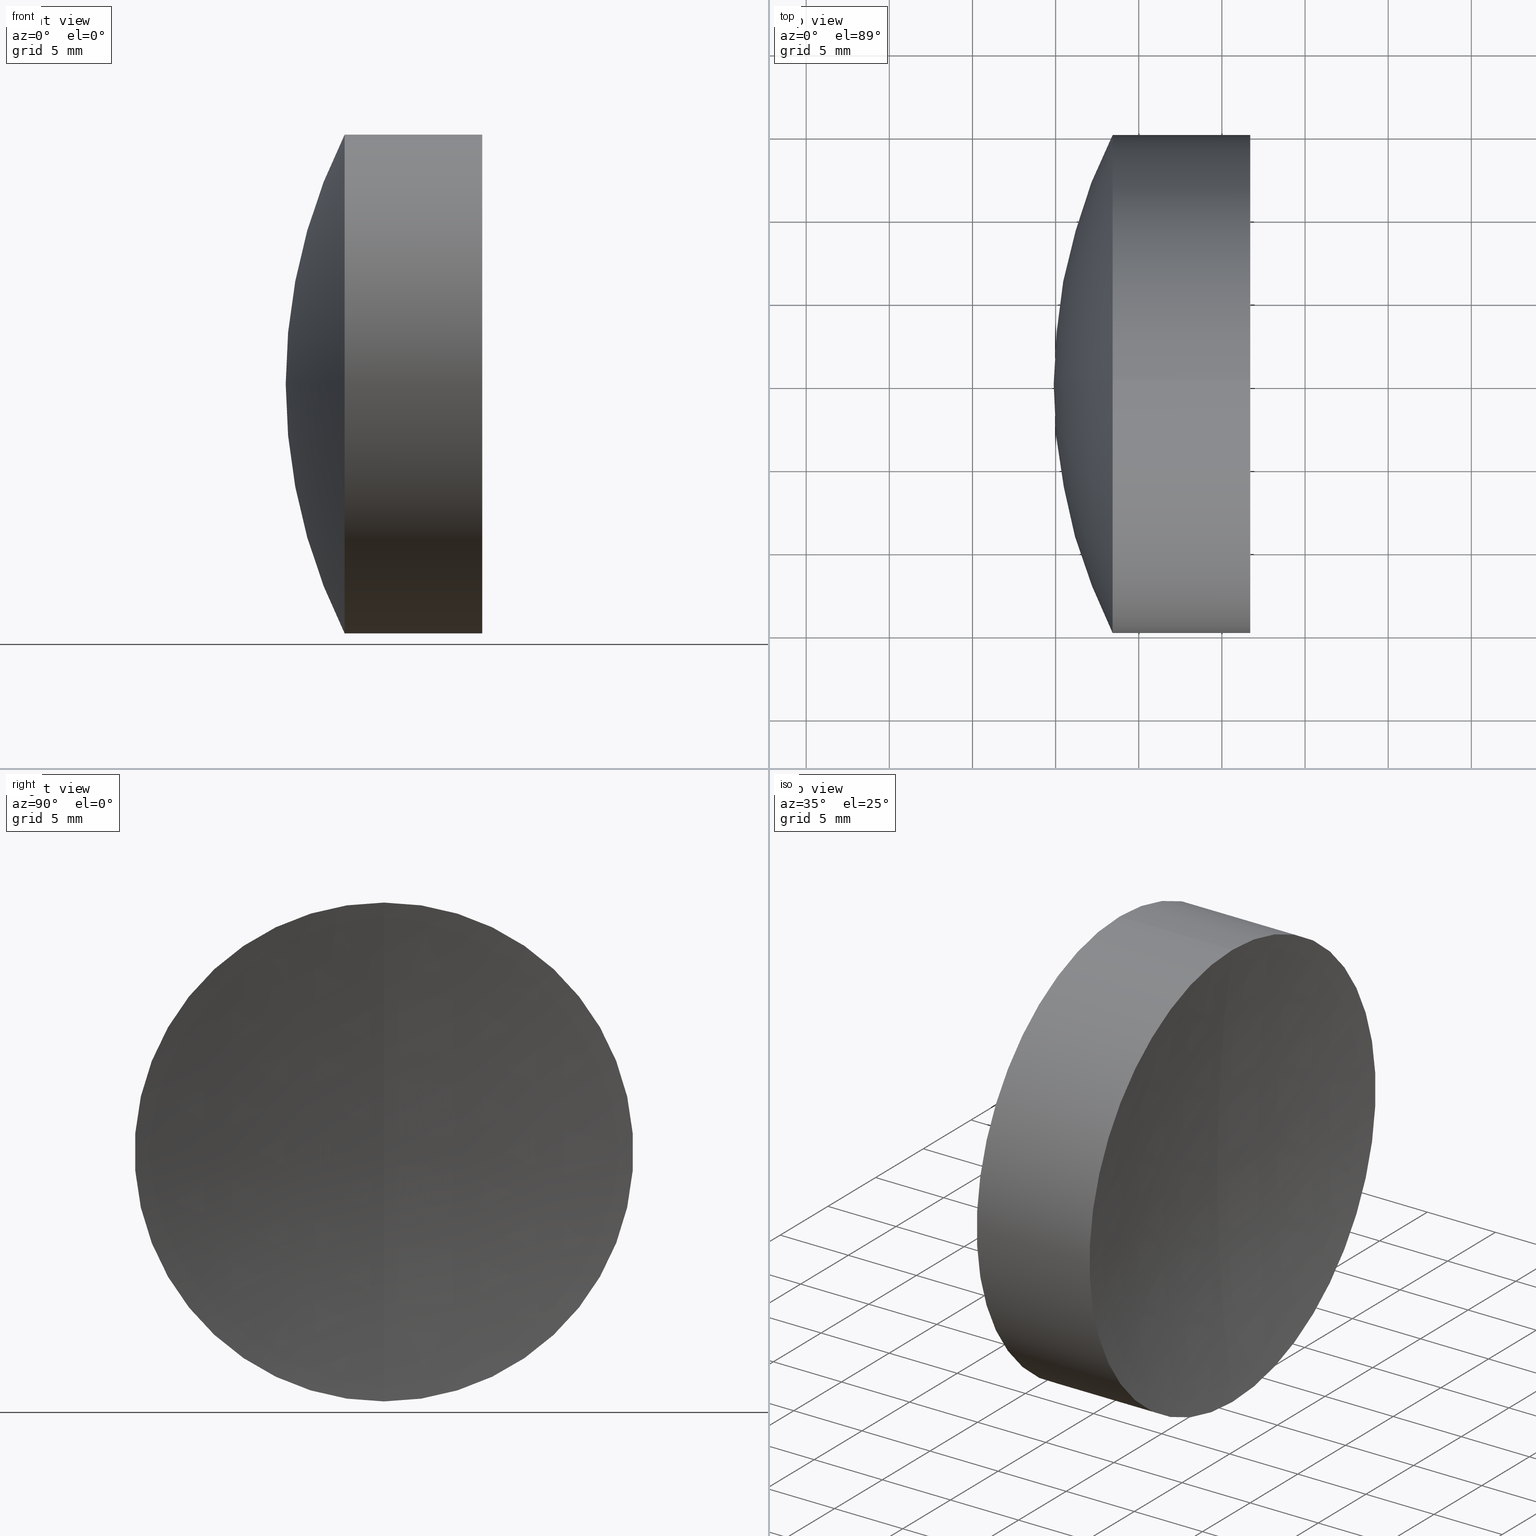
[diagram: canonical four-view strip — front | top / right | iso, engineering-drawing reading convention]
A machine part, canonical four-view strip (front | top / right | iso — engineering-drawing reading convention). The complete STEP part file that produces these views, byte-faithful:
ISO-10303-21;
HEADER;
FILE_DESCRIPTION (( 'STEP AP214' ),
    '1' );
FILE_NAME ('145175.STEP',
    '2019-06-12T03:09:09',
    ( 'user' ),
    ( '΢���й�' ),
    'SwSTEP 2.0',
    'SolidWorks 2016',
    '' );
FILE_SCHEMA (( 'AUTOMOTIVE_DESIGN' ));
ENDSEC;

DATA;
#1 = AXIS2_PLACEMENT_3D ( 'NONE', #339, #184, #150 ) ;
#2 = FACE_OUTER_BOUND ( 'NONE', #238, .T. ) ;
#3 = ORIENTED_EDGE ( 'NONE', *, *, #291, .F. ) ;
#4 = ORIENTED_EDGE ( 'NONE', *, *, #215, .T. ) ;
#5 =( GEOMETRIC_REPRESENTATION_CONTEXT ( 3 ) GLOBAL_UNCERTAINTY_ASSIGNED_CONTEXT ( ( #41 ) ) GLOBAL_UNIT_ASSIGNED_CONTEXT ( ( #45, #183, #181 ) ) REPRESENTATION_CONTEXT ( 'NONE', 'WORKASPACE' ) );
#6 = EDGE_CURVE ( 'NONE', #109, #336, #209, .T. ) ;
#7 = SURFACE_STYLE_USAGE ( .BOTH. , #259 ) ;
#8 = ORIENTED_EDGE ( 'NONE', *, *, #40, .T. ) ;
#9 =( NAMED_UNIT ( * ) SI_UNIT ( $, .STERADIAN. ) SOLID_ANGLE_UNIT ( ) );
#10 = CLOSED_SHELL ( 'NONE', ( #286, #230, #125, #174, #284, #114 ) ) ;
#11 = AXIS2_PLACEMENT_3D ( 'NONE', #289, #120, #309 ) ;
#12 =( NAMED_UNIT ( * ) PLANE_ANGLE_UNIT ( ) SI_UNIT ( $, .RADIAN. ) );
#13 = EDGE_LOOP ( 'NONE', ( #78, #4, #33 ) ) ;
#14 = DIRECTION ( 'NONE',  ( -1.000000000000000000, -0.0000000000000000000, -0.0000000000000000000 ) ) ;
#15 = AXIS2_PLACEMENT_3D ( 'NONE', #70, #331, #325 ) ;
#16 = EDGE_LOOP ( 'NONE', ( #152, #48, #252, #224 ) ) ;
#17 = DIRECTION ( 'NONE',  ( 0.0000000000000000000, 1.000000000000000000, 0.0000000000000000000 ) ) ;
#18 = COLOUR_RGB ( '',1.000000000000000000, 1.000000000000000000, 1.000000000000000000 ) ;
#19 = CARTESIAN_POINT ( 'NONE',  ( 64.21488383904902300, 0.0000000000000000000, -1.301132161007754700E-015 ) ) ;
#20 = AXIS2_PLACEMENT_3D ( 'NONE', #115, #132, #148 ) ;
#21 = CARTESIAN_POINT ( 'NONE',  ( 106.7084432076796400, 0.0000000000000000000, 0.0000000000000000000 ) ) ;
#22 = AXIS2_PLACEMENT_3D ( 'NONE', #168, #313, #141 ) ;
#23 = PRODUCT ( '145175', '145175', '', ( #201 ) ) ;
#24 = CARTESIAN_POINT ( 'NONE',  ( 103.3848838390490400, 0.0000000000000000000, 1.097338595122336800E-015 ) ) ;
#25 = EDGE_CURVE ( 'NONE', #173, #267, #271, .T. ) ;
#26 = CARTESIAN_POINT ( 'NONE',  ( 98.43075223754873100, 1.836970198721029600E-015, -15.00000000000000500 ) ) ;
#27 = CARTESIAN_POINT ( 'NONE',  ( 64.21488383904902300, 0.0000000000000000000, -1.301132161007754700E-015 ) ) ;
#28 = DIRECTION ( 'NONE',  ( 0.0000000000000000000, 0.0000000000000000000, -1.000000000000000000 ) ) ;
#29 = AXIS2_PLACEMENT_3D ( 'NONE', #211, #301, #139 ) ;
#30 = DIRECTION ( 'NONE',  ( 0.0000000000000000000, 1.000000000000000000, 0.0000000000000000000 ) ) ;
#31 = APPLICATION_PROTOCOL_DEFINITION ( 'draft international standard', 'automotive_design', 1998, #257 ) ;
#32 = CARTESIAN_POINT ( 'NONE',  ( -0.8160621761658039000, 0.0000000000000000000, 0.0000000000000000000 ) ) ;
#33 = ORIENTED_EDGE ( 'NONE', *, *, #149, .T. ) ;
#34 = ORIENTED_EDGE ( 'NONE', *, *, #229, .F. ) ;
#35 = AXIS2_PLACEMENT_3D ( 'NONE', #91, #99, #76 ) ;
#36 = CIRCLE ( 'NONE', #133, 39.17000000000000900 ) ;
#37 = ORIENTED_EDGE ( 'NONE', *, *, #296, .T. ) ;
#38 = AXIS2_PLACEMENT_3D ( 'NONE', #334, #285, #268 ) ;
#39 = AXIS2_PLACEMENT_3D ( 'NONE', #323, #58, #214 ) ;
#40 = EDGE_CURVE ( 'NONE', #109, #129, #246, .T. ) ;
#41 = UNCERTAINTY_MEASURE_WITH_UNIT (LENGTH_MEASURE( 1.000000000000000100E-005 ), #45, 'distance_accuracy_value', 'NONE');
#42 = ORIENTED_EDGE ( 'NONE', *, *, #240, .F. ) ;
#43 = CYLINDRICAL_SURFACE ( 'NONE', #243, 14.99999999999999600 ) ;
#44 = SPHERICAL_SURFACE ( 'NONE', #1, 100.6900000000000000 ) ;
#45 =( LENGTH_UNIT ( ) NAMED_UNIT ( * ) SI_UNIT ( .MILLI., .METRE. ) );
#46 = STYLED_ITEM ( 'NONE', ( #294 ), #102 ) ;
#47 = DIRECTION ( 'NONE',  ( 0.0000000000000000000, -1.000000000000000000, 0.0000000000000000000 ) ) ;
#48 = ORIENTED_EDGE ( 'NONE', *, *, #340, .T. ) ;
#49 = FACE_OUTER_BOUND ( 'NONE', #234, .T. ) ;
#50 = AXIS2_PLACEMENT_3D ( 'NONE', #64, #290, #307 ) ;
#51 = ORIENTED_EDGE ( 'NONE', *, *, #149, .F. ) ;
#52 = SPHERICAL_SURFACE ( 'NONE', #15, 100.6900000000000000 ) ;
#53 = DIRECTION ( 'NONE',  ( 0.0000000000000000000, 0.0000000000000000000, 1.000000000000000000 ) ) ;
#54 = AXIS2_PLACEMENT_3D ( 'NONE', #175, #108, #256 ) ;
#55 = CARTESIAN_POINT ( 'NONE',  ( 103.3848838390490400, 0.0000000000000000000, 1.097338595122337000E-015 ) ) ;
#56 = EDGE_CURVE ( 'NONE', #250, #59, #269, .T. ) ;
#57 = FACE_OUTER_BOUND ( 'NONE', #95, .T. ) ;
#58 = DIRECTION ( 'NONE',  ( -0.0000000000000000000, 1.000000000000000000, 1.224646799147353200E-016 ) ) ;
#59 = VERTEX_POINT ( 'NONE', #26 ) ;
#60 = ORIENTED_EDGE ( 'NONE', *, *, #206, .T. ) ;
#61 = PRESENTATION_LAYER_ASSIGNMENT (  '', '', ( #46 ) ) ;
#62 = DIRECTION ( 'NONE',  ( 0.0000000000000000000, 1.000000000000000000, 0.0000000000000000000 ) ) ;
#63 = FILL_AREA_STYLE_COLOUR ( '', #18 ) ;
#64 = CARTESIAN_POINT ( 'NONE',  ( 98.43075223754873100, 0.0000000000000000000, 0.0000000000000000000 ) ) ;
#65 = CARTESIAN_POINT ( 'NONE',  ( 128.3848838390490500, 0.0000000000000000000, -2.684811241742861700E-015 ) ) ;
#66 = MECHANICAL_DESIGN_GEOMETRIC_PRESENTATION_REPRESENTATION (  '', ( #46 ), #320 ) ;
#67 = ORIENTED_EDGE ( 'NONE', *, *, #56, .T. ) ;
#68 = DIRECTION ( 'NONE',  ( -1.000000000000000000, -0.0000000000000000000, -0.0000000000000000000 ) ) ;
#69 = CIRCLE ( 'NONE', #79, 15.00000000000000900 ) ;
#70 = CARTESIAN_POINT ( 'NONE',  ( 206.2748838390490100, 0.0000000000000000000, 0.0000000000000000000 ) ) ;
#71 = CIRCLE ( 'NONE', #112, 15.00000000000000900 ) ;
#72 = FILL_AREA_STYLE_COLOUR ( '', #266 ) ;
#73 = VERTEX_POINT ( 'NONE', #338 ) ;
#74 = FACE_OUTER_BOUND ( 'NONE', #179, .T. ) ;
#75 = AXIS2_PLACEMENT_3D ( 'NONE', #116, #68, #330 ) ;
#76 = DIRECTION ( 'NONE',  ( 0.0000000000000000000, 0.0000000000000000000, 1.000000000000000000 ) ) ;
#77 = DIRECTION ( 'NONE',  ( -0.0000000000000000000, 1.000000000000000000, 1.224646799147353200E-016 ) ) ;
#78 = ORIENTED_EDGE ( 'NONE', *, *, #296, .F. ) ;
#79 = AXIS2_PLACEMENT_3D ( 'NONE', #128, #302, #278 ) ;
#80 =( NAMED_UNIT ( * ) PLANE_ANGLE_UNIT ( ) SI_UNIT ( $, .RADIAN. ) );
#81 = ORIENTED_EDGE ( 'NONE', *, *, #321, .F. ) ;
#82 = COLOUR_RGB ( '',1.000000000000000000, 1.000000000000000000, 1.000000000000000000 ) ;
#83 = PRODUCT_DEFINITION_SHAPE ( 'NONE', 'NONE',  #204 ) ;
#84 = CYLINDRICAL_SURFACE ( 'NONE', #35, 15.00000000000000900 ) ;
#85 = SURFACE_STYLE_USAGE ( .BOTH. , #223 ) ;
#86 = DIRECTION ( 'NONE',  ( 0.0000000000000000000, 0.0000000000000000000, 1.000000000000000000 ) ) ;
#87 = FACE_OUTER_BOUND ( 'NONE', #13, .T. ) ;
#88 = CARTESIAN_POINT ( 'NONE',  ( -0.5519199926577972300, 0.0000000000000000000, 15.00000000000000900 ) ) ;
#89 = ORIENTED_EDGE ( 'NONE', *, *, #6, .T. ) ;
#90 = ORIENTED_EDGE ( 'NONE', *, *, #40, .F. ) ;
#91 = CARTESIAN_POINT ( 'NONE',  ( -0.5519199926577972300, 0.0000000000000000000, 0.0000000000000000000 ) ) ;
#92 = ADVANCED_FACE ( 'NONE', ( #186 ), #346, .T. ) ;
#93 = CARTESIAN_POINT ( 'NONE',  ( -0.5519199926577972300, 0.0000000000000000000, 0.0000000000000000000 ) ) ;
#94 = AXIS2_PLACEMENT_3D ( 'NONE', #113, #62, #86 ) ;
#95 = EDGE_LOOP ( 'NONE', ( #329, #8, #60 ) ) ;
#96 = CARTESIAN_POINT ( 'NONE',  ( 100.3989811747571700, 0.0000000000000000000, 0.0000000000000000000 ) ) ;
#97 = DIRECTION ( 'NONE',  ( 0.0000000000000000000, -1.000000000000000000, 0.0000000000000000000 ) ) ;
#98 = AXIS2_PLACEMENT_3D ( 'NONE', #287, #30, #194 ) ;
#99 = DIRECTION ( 'NONE',  ( -1.000000000000000000, -0.0000000000000000000, -0.0000000000000000000 ) ) ;
#100 = ORIENTED_EDGE ( 'NONE', *, *, #229, .T. ) ;
#101 = CARTESIAN_POINT ( 'NONE',  ( 100.3989811747571500, 0.0000000000000000000, 0.0000000000000000000 ) ) ;
#102 = MANIFOLD_SOLID_BREP ( '��ת2', #10 ) ;
#103 = EDGE_LOOP ( 'NONE', ( #310, #337, #210, #227 ) ) ;
#104 = AXIS2_PLACEMENT_3D ( 'NONE', #19, #295, #155 ) ;
#105 = DIRECTION ( 'NONE',  ( -1.000000000000000000, -0.0000000000000000000, -0.0000000000000000000 ) ) ;
#106 = DIRECTION ( 'NONE',  ( -1.000000000000000000, -0.0000000000000000000, -0.0000000000000000000 ) ) ;
#107 = EDGE_CURVE ( 'NONE', #162, #59, #142, .T. ) ;
#108 = DIRECTION ( 'NONE',  ( 0.0000000000000000000, 1.000000000000000000, 0.0000000000000000000 ) ) ;
#109 = VERTEX_POINT ( 'NONE', #24 ) ;
#110 =( LENGTH_UNIT ( ) NAMED_UNIT ( * ) SI_UNIT ( .MILLI., .METRE. ) );
#111 = CIRCLE ( 'NONE', #20, 33.50000000000001400 ) ;
#112 = AXIS2_PLACEMENT_3D ( 'NONE', #21, #106, #53 ) ;
#113 = CARTESIAN_POINT ( 'NONE',  ( 64.21488383904902300, 0.0000000000000000000, -1.301132161007754700E-015 ) ) ;
#114 = ADVANCED_FACE ( 'NONE', ( #275 ), #84, .T. ) ;
#115 = CARTESIAN_POINT ( 'NONE',  ( 128.3848838390490500, 0.0000000000000000000, -2.684811241742861700E-015 ) ) ;
#116 = CARTESIAN_POINT ( 'NONE',  ( 98.43075223754873100, 0.0000000000000000000, 0.0000000000000000000 ) ) ;
#117 = CARTESIAN_POINT ( 'NONE',  ( 106.7084432076796400, -1.836970198721022100E-015, 14.99999999999994000 ) ) ;
#118 = AXIS2_PLACEMENT_3D ( 'NONE', #101, #253, #254 ) ;
#119 = APPLICATION_CONTEXT ( 'automotive_design' ) ;
#120 = DIRECTION ( 'NONE',  ( -1.000000000000000000, -0.0000000000000000000, -0.0000000000000000000 ) ) ;
#121 = ADVANCED_FACE ( 'NONE', ( #87 ), #270, .T. ) ;
#122 = DIRECTION ( 'NONE',  ( -1.000000000000000000, -0.0000000000000000000, -0.0000000000000000000 ) ) ;
#123 = VECTOR ( 'NONE', #138, 1000.000000000000000 ) ;
#124 = AXIS2_PLACEMENT_3D ( 'NONE', #93, #197, #217 ) ;
#125 = ADVANCED_FACE ( 'NONE', ( #57 ), #293, .F. ) ;
#126 = ORIENTED_EDGE ( 'NONE', *, *, #166, .F. ) ;
#127 = ORIENTED_EDGE ( 'NONE', *, *, #303, .F. ) ;
#128 = CARTESIAN_POINT ( 'NONE',  ( 100.3989811747571500, 0.0000000000000000000, 0.0000000000000000000 ) ) ;
#129 = VERTEX_POINT ( 'NONE', #153 ) ;
#130 = AXIS2_PLACEMENT_3D ( 'NONE', #185, #77, #171 ) ;
#131 = SURFACE_STYLE_FILL_AREA ( #343 ) ;
#132 = DIRECTION ( 'NONE',  ( -0.0000000000000000000, 1.000000000000000000, 1.224646799147353200E-016 ) ) ;
#133 = AXIS2_PLACEMENT_3D ( 'NONE', #220, #47, #274 ) ;
#134 = DIRECTION ( 'NONE',  ( 0.0000000000000000000, 0.0000000000000000000, 1.000000000000000000 ) ) ;
#135 = DIRECTION ( 'NONE',  ( 1.000000000000000000, 0.0000000000000000000, 0.0000000000000000000 ) ) ;
#136 = SPHERICAL_SURFACE ( 'NONE', #104, 39.17000000000000900 ) ;
#137 = DIRECTION ( 'NONE',  ( 0.0000000000000000000, 0.0000000000000000000, 1.000000000000000000 ) ) ;
#138 = DIRECTION ( 'NONE',  ( -1.000000000000000000, -0.0000000000000000000, -0.0000000000000000000 ) ) ;
#139 = DIRECTION ( 'NONE',  ( 0.0000000000000000000, 0.0000000000000000000, 1.000000000000000000 ) ) ;
#140 = AXIS2_PLACEMENT_3D ( 'NONE', #158, #322, #188 ) ;
#141 = DIRECTION ( 'NONE',  ( 0.0000000000000000000, 0.0000000000000000000, 1.000000000000000000 ) ) ;
#142 = CIRCLE ( 'NONE', #50, 14.99999999999999600 ) ;
#143 = FACE_OUTER_BOUND ( 'NONE', #151, .T. ) ;
#144 = ADVANCED_FACE ( 'NONE', ( #342 ), #203, .T. ) ;
#145 = VECTOR ( 'NONE', #105, 1000.000000000000000 ) ;
#146 = FILL_AREA_STYLE_COLOUR ( '', #82 ) ;
#147 = AXIS2_PLACEMENT_3D ( 'NONE', #216, #304, #137 ) ;
#148 = DIRECTION ( 'NONE',  ( 0.0000000000000000000, -1.224646799147353000E-016, 1.000000000000000000 ) ) ;
#149 = EDGE_CURVE ( 'NONE', #162, #73, #160, .T. ) ;
#150 = DIRECTION ( 'NONE',  ( 0.0000000000000000000, 0.0000000000000000000, -1.000000000000000000 ) ) ;
#151 = EDGE_LOOP ( 'NONE', ( #126, #219, #3 ) ) ;
#152 = ORIENTED_EDGE ( 'NONE', *, *, #249, .F. ) ;
#153 = CARTESIAN_POINT ( 'NONE',  ( 100.3989811747571500, 1.836970198721031200E-015, -15.00000000000001100 ) ) ;
#154 =( GEOMETRIC_REPRESENTATION_CONTEXT ( 3 ) GLOBAL_UNCERTAINTY_ASSIGNED_CONTEXT ( ( #205 ) ) GLOBAL_UNIT_ASSIGNED_CONTEXT ( ( #199, #242, #9 ) ) REPRESENTATION_CONTEXT ( 'NONE', 'WORKASPACE' ) );
#155 = DIRECTION ( 'NONE',  ( 0.0000000000000000000, 0.0000000000000000000, 1.000000000000000000 ) ) ;
#156 = ORIENTED_EDGE ( 'NONE', *, *, #25, .F. ) ;
#157 = ORIENTED_EDGE ( 'NONE', *, *, #166, .T. ) ;
#158 = CARTESIAN_POINT ( 'NONE',  ( 206.2748838390490100, 0.0000000000000000000, 0.0000000000000000000 ) ) ;
#159 = EDGE_CURVE ( 'NONE', #236, #336, #258, .T. ) ;
#160 = CIRCLE ( 'NONE', #298, 33.50000000000001400 ) ;
#161 = SURFACE_STYLE_FILL_AREA ( #332 ) ;
#162 = VERTEX_POINT ( 'NONE', #306 ) ;
#163 = STYLED_ITEM ( 'NONE', ( #207 ), #335 ) ;
#164 = FILL_AREA_STYLE ('',( #63 ) ) ;
#165 = CARTESIAN_POINT ( 'NONE',  ( -0.8160621761658039000, 1.836970198721029200E-015, -14.99999999999999600 ) ) ;
#166 = EDGE_CURVE ( 'NONE', #299, #250, #326, .T. ) ;
#167 = ADVANCED_FACE ( 'NONE', ( #277 ), #43, .T. ) ;
#168 = CARTESIAN_POINT ( 'NONE',  ( 100.3989811747571700, 0.0000000000000000000, 0.0000000000000000000 ) ) ;
#169 = CIRCLE ( 'NONE', #118, 15.00000000000000900 ) ;
#170 = ORIENTED_EDGE ( 'NONE', *, *, #249, .T. ) ;
#171 = DIRECTION ( 'NONE',  ( 0.0000000000000000000, -1.224646799147353200E-016, 1.000000000000000000 ) ) ;
#172 = CARTESIAN_POINT ( 'NONE',  ( 100.3989811747571500, 0.0000000000000000000, 15.00000000000001100 ) ) ;
#173 = VERTEX_POINT ( 'NONE', #276 ) ;
#174 = ADVANCED_FACE ( 'NONE', ( #74 ), #319, .F. ) ;
#175 = CARTESIAN_POINT ( 'NONE',  ( 64.21488383904902300, 0.0000000000000000000, -1.301132161007754700E-015 ) ) ;
#176 = VERTEX_POINT ( 'NONE', #315 ) ;
#177 = CIRCLE ( 'NONE', #316, 14.99999999999999800 ) ;
#178 = MECHANICAL_DESIGN_GEOMETRIC_PRESENTATION_REPRESENTATION (  '', ( #163 ), #187 ) ;
#179 = EDGE_LOOP ( 'NONE', ( #90, #89, #239 ) ) ;
#180 = EDGE_LOOP ( 'NONE', ( #244, #37, #51 ) ) ;
#181 =( NAMED_UNIT ( * ) SI_UNIT ( $, .STERADIAN. ) SOLID_ANGLE_UNIT ( ) );
#182 = PRESENTATION_LAYER_ASSIGNMENT (  '', '', ( #163 ) ) ;
#183 =( NAMED_UNIT ( * ) PLANE_ANGLE_UNIT ( ) SI_UNIT ( $, .RADIAN. ) );
#184 = DIRECTION ( 'NONE',  ( -0.0000000000000000000, -1.000000000000000000, -0.0000000000000000000 ) ) ;
#185 = CARTESIAN_POINT ( 'NONE',  ( 64.21488383904902300, 0.0000000000000000000, -1.301132161007754700E-015 ) ) ;
#186 = FACE_OUTER_BOUND ( 'NONE', #272, .T. ) ;
#187 =( GEOMETRIC_REPRESENTATION_CONTEXT ( 3 ) GLOBAL_UNCERTAINTY_ASSIGNED_CONTEXT ( ( #193 ) ) GLOBAL_UNIT_ASSIGNED_CONTEXT ( ( #265, #12, #245 ) ) REPRESENTATION_CONTEXT ( 'NONE', 'WORKASPACE' ) );
#188 = DIRECTION ( 'NONE',  ( 0.0000000000000000000, 1.224646799147353200E-016, -1.000000000000000000 ) ) ;
#189 = CIRCLE ( 'NONE', #75, 14.99999999999999600 ) ;
#190 = APPLICATION_PROTOCOL_DEFINITION ( 'draft international standard', 'automotive_design', 1998, #119 ) ;
#191 = SHAPE_DEFINITION_REPRESENTATION ( #83, #335 ) ;
#192 = CLOSED_SHELL ( 'NONE', ( #92, #167, #144, #121, #260, #308 ) ) ;
#193 = UNCERTAINTY_MEASURE_WITH_UNIT (LENGTH_MEASURE( 1.000000000000000100E-005 ), #265, 'distance_accuracy_value', 'NONE');
#194 = DIRECTION ( 'NONE',  ( 0.0000000000000000000, 0.0000000000000000000, 1.000000000000000000 ) ) ;
#195 = DIRECTION ( 'NONE',  ( 0.0000000000000000000, 0.0000000000000000000, 1.000000000000000000 ) ) ;
#196 = VECTOR ( 'NONE', #208, 1000.000000000000000 ) ;
#197 = DIRECTION ( 'NONE',  ( -1.000000000000000000, -0.0000000000000000000, -0.0000000000000000000 ) ) ;
#198 = ORIENTED_EDGE ( 'NONE', *, *, #159, .F. ) ;
#199 =( LENGTH_UNIT ( ) NAMED_UNIT ( * ) SI_UNIT ( .MILLI., .METRE. ) );
#200 = ORIENTED_EDGE ( 'NONE', *, *, #25, .T. ) ;
#201 = PRODUCT_CONTEXT ( 'NONE', #257, 'mechanical' ) ;
#202 = CARTESIAN_POINT ( 'NONE',  ( 100.3989811747571700, 1.836970198721029600E-015, -15.00000000000000000 ) ) ;
#203 = SPHERICAL_SURFACE ( 'NONE', #98, 33.50000000000001400 ) ;
#204 = PRODUCT_DEFINITION ( 'δ֪', '', #232, #213 ) ;
#205 = UNCERTAINTY_MEASURE_WITH_UNIT (LENGTH_MEASURE( 1.000000000000000100E-005 ), #199, 'distance_accuracy_value', 'NONE');
#206 = EDGE_CURVE ( 'NONE', #129, #336, #69, .T. ) ;
#207 = PRESENTATION_STYLE_ASSIGNMENT (( #241 ) ) ;
#208 = DIRECTION ( 'NONE',  ( -1.000000000000000000, -0.0000000000000000000, -0.0000000000000000000 ) ) ;
#209 = CIRCLE ( 'NONE', #344, 39.17000000000000200 ) ;
#210 = ORIENTED_EDGE ( 'NONE', *, *, #222, .T. ) ;
#211 = CARTESIAN_POINT ( 'NONE',  ( 64.21488383904902300, 0.0000000000000000000, -1.301132161007754700E-015 ) ) ;
#212 = AXIS2_PLACEMENT_3D ( 'NONE', #235, #134, #135 ) ;
#213 = PRODUCT_DEFINITION_CONTEXT ( 'detailed design', #119, 'design' ) ;
#214 = DIRECTION ( 'NONE',  ( 0.0000000000000000000, -1.224646799147353200E-016, 1.000000000000000000 ) ) ;
#215 = EDGE_CURVE ( 'NONE', #59, #162, #189, .T. ) ;
#216 = CARTESIAN_POINT ( 'NONE',  ( 106.7084432076796400, 0.0000000000000000000, 0.0000000000000000000 ) ) ;
#217 = DIRECTION ( 'NONE',  ( 0.0000000000000000000, 0.0000000000000000000, 1.000000000000000000 ) ) ;
#218 = ORIENTED_EDGE ( 'NONE', *, *, #340, .F. ) ;
#219 = ORIENTED_EDGE ( 'NONE', *, *, #333, .T. ) ;
#220 = CARTESIAN_POINT ( 'NONE',  ( 64.21488383904902300, 0.0000000000000000000, -1.301132161007754700E-015 ) ) ;
#221 = SURFACE_STYLE_FILL_AREA ( #164 ) ;
#222 = EDGE_CURVE ( 'NONE', #176, #162, #248, .T. ) ;
#223 = SURFACE_SIDE_STYLE ('',( #161 ) ) ;
#224 = ORIENTED_EDGE ( 'NONE', *, *, #206, .F. ) ;
#225 = DIRECTION ( 'NONE',  ( 0.0000000000000000000, 0.0000000000000000000, 1.000000000000000000 ) ) ;
#226 = PRODUCT_RELATED_PRODUCT_CATEGORY ( 'part', '', ( #23 ) ) ;
#227 = ORIENTED_EDGE ( 'NONE', *, *, #215, .F. ) ;
#228 = ORIENTED_EDGE ( 'NONE', *, *, #240, .T. ) ;
#229 = EDGE_CURVE ( 'NONE', #176, #250, #177, .T. ) ;
#230 = ADVANCED_FACE ( 'NONE', ( #49 ), #44, .F. ) ;
#231 = MANIFOLD_SOLID_BREP ( '��ת1', #192 ) ;
#232 = PRODUCT_DEFINITION_FORMATION_WITH_SPECIFIED_SOURCE ( '�κ�', '', #23, .NOT_KNOWN. ) ;
#233 = CARTESIAN_POINT ( 'NONE',  ( -0.8160621761658039000, 0.0000000000000000000, 14.99999999999999600 ) ) ;
#234 = EDGE_LOOP ( 'NONE', ( #81, #228, #156 ) ) ;
#235 = CARTESIAN_POINT ( 'NONE',  ( 0.0000000000000000000, 0.0000000000000000000, 0.0000000000000000000 ) ) ;
#236 = VERTEX_POINT ( 'NONE', #117 ) ;
#237 = EDGE_LOOP ( 'NONE', ( #42, #218, #200 ) ) ;
#238 = EDGE_LOOP ( 'NONE', ( #312, #170, #127, #198 ) ) ;
#239 = ORIENTED_EDGE ( 'NONE', *, *, #303, .T. ) ;
#240 = EDGE_CURVE ( 'NONE', #236, #267, #305, .T. ) ;
#241 = SURFACE_STYLE_USAGE ( .BOTH. , #317 ) ;
#242 =( NAMED_UNIT ( * ) PLANE_ANGLE_UNIT ( ) SI_UNIT ( $, .RADIAN. ) );
#243 = AXIS2_PLACEMENT_3D ( 'NONE', #32, #273, #318 ) ;
#244 = ORIENTED_EDGE ( 'NONE', *, *, #107, .T. ) ;
#245 =( NAMED_UNIT ( * ) SI_UNIT ( $, .STERADIAN. ) SOLID_ANGLE_UNIT ( ) );
#246 = CIRCLE ( 'NONE', #39, 39.17000000000000200 ) ;
#247 = DIRECTION ( 'NONE',  ( 0.0000000000000000000, -1.000000000000000000, 0.0000000000000000000 ) ) ;
#248 = LINE ( 'NONE', #233, #196 ) ;
#249 = EDGE_CURVE ( 'NONE', #173, #129, #328, .T. ) ;
#250 = VERTEX_POINT ( 'NONE', #202 ) ;
#251 = PRESENTATION_LAYER_ASSIGNMENT (  '', '', ( #327 ) ) ;
#252 = ORIENTED_EDGE ( 'NONE', *, *, #159, .T. ) ;
#253 = DIRECTION ( 'NONE',  ( -1.000000000000000000, -0.0000000000000000000, -0.0000000000000000000 ) ) ;
#254 = DIRECTION ( 'NONE',  ( 0.0000000000000000000, 0.0000000000000000000, 1.000000000000000000 ) ) ;
#255 = CYLINDRICAL_SURFACE ( 'NONE', #11, 14.99999999999999600 ) ;
#256 = DIRECTION ( 'NONE',  ( 0.0000000000000000000, 0.0000000000000000000, 1.000000000000000000 ) ) ;
#257 = APPLICATION_CONTEXT ( 'automotive_design' ) ;
#258 = LINE ( 'NONE', #88, #145 ) ;
#259 = SURFACE_SIDE_STYLE ('',( #221 ) ) ;
#260 = ADVANCED_FACE ( 'NONE', ( #280 ), #255, .T. ) ;
#261 = MECHANICAL_DESIGN_GEOMETRIC_PRESENTATION_REPRESENTATION (  '', ( #327 ), #5 ) ;
#262 = CARTESIAN_POINT ( 'NONE',  ( 128.3848838390490500, 0.0000000000000000000, -2.684811241742861700E-015 ) ) ;
#263 = UNCERTAINTY_MEASURE_WITH_UNIT (LENGTH_MEASURE( 1.000000000000000100E-005 ), #110, 'distance_accuracy_value', 'NONE');
#264 = VECTOR ( 'NONE', #122, 1000.000000000000000 ) ;
#265 =( LENGTH_UNIT ( ) NAMED_UNIT ( * ) SI_UNIT ( .MILLI., .METRE. ) );
#266 = COLOUR_RGB ( '',1.000000000000000000, 1.000000000000000000, 1.000000000000000000 ) ;
#267 = VERTEX_POINT ( 'NONE', #282 ) ;
#268 = DIRECTION ( 'NONE',  ( 0.0000000000000000000, 0.0000000000000000000, 1.000000000000000000 ) ) ;
#269 = LINE ( 'NONE', #165, #123 ) ;
#270 = SPHERICAL_SURFACE ( 'NONE', #311, 33.50000000000001400 ) ;
#271 = CIRCLE ( 'NONE', #38, 100.6900000000000000 ) ;
#272 = EDGE_LOOP ( 'NONE', ( #288, #157, #34 ) ) ;
#273 = DIRECTION ( 'NONE',  ( -1.000000000000000000, -0.0000000000000000000, -0.0000000000000000000 ) ) ;
#274 = DIRECTION ( 'NONE',  ( 0.0000000000000000000, 0.0000000000000000000, -1.000000000000000000 ) ) ;
#275 = FACE_OUTER_BOUND ( 'NONE', #16, .T. ) ;
#276 = CARTESIAN_POINT ( 'NONE',  ( 106.7084432076796400, 0.0000000000000000000, -14.99999999999994000 ) ) ;
#277 = FACE_OUTER_BOUND ( 'NONE', #300, .T. ) ;
#278 = DIRECTION ( 'NONE',  ( 0.0000000000000000000, 0.0000000000000000000, 1.000000000000000000 ) ) ;
#279 =( NAMED_UNIT ( * ) SI_UNIT ( $, .STERADIAN. ) SOLID_ANGLE_UNIT ( ) );
#280 = FACE_OUTER_BOUND ( 'NONE', #103, .T. ) ;
#281 = ORIENTED_EDGE ( 'NONE', *, *, #107, .F. ) ;
#282 = CARTESIAN_POINT ( 'NONE',  ( 105.5848838390490100, 0.0000000000000000000, -6.165484310307349800E-015 ) ) ;
#283 = CIRCLE ( 'NONE', #147, 15.00000000000000900 ) ;
#284 = ADVANCED_FACE ( 'NONE', ( #345 ), #52, .F. ) ;
#285 = DIRECTION ( 'NONE',  ( 0.0000000000000000000, 1.000000000000000000, -0.0000000000000000000 ) ) ;
#286 = ADVANCED_FACE ( 'NONE', ( #2 ), #314, .T. ) ;
#287 = CARTESIAN_POINT ( 'NONE',  ( 128.3848838390490500, 0.0000000000000000000, -2.684811241742861700E-015 ) ) ;
#288 = ORIENTED_EDGE ( 'NONE', *, *, #333, .F. ) ;
#289 = CARTESIAN_POINT ( 'NONE',  ( -0.8160621761658039000, 0.0000000000000000000, 0.0000000000000000000 ) ) ;
#290 = DIRECTION ( 'NONE',  ( -1.000000000000000000, -0.0000000000000000000, -0.0000000000000000000 ) ) ;
#291 = EDGE_CURVE ( 'NONE', #250, #176, #324, .T. ) ;
#292 = ORIENTED_EDGE ( 'NONE', *, *, #222, .F. ) ;
#293 = SPHERICAL_SURFACE ( 'NONE', #29, 39.17000000000000200 ) ;
#294 = PRESENTATION_STYLE_ASSIGNMENT (( #85 ) ) ;
#295 = DIRECTION ( 'NONE',  ( 0.0000000000000000000, 1.000000000000000000, 0.0000000000000000000 ) ) ;
#296 = EDGE_CURVE ( 'NONE', #59, #73, #111, .T. ) ;
#297 = CARTESIAN_POINT ( 'NONE',  ( -0.5519199926577972300, 1.836970198721030800E-015, -15.00000000000000900 ) ) ;
#298 = AXIS2_PLACEMENT_3D ( 'NONE', #262, #97, #28 ) ;
#299 = VERTEX_POINT ( 'NONE', #55 ) ;
#300 = EDGE_LOOP ( 'NONE', ( #100, #67, #281, #292 ) ) ;
#301 = DIRECTION ( 'NONE',  ( 0.0000000000000000000, 1.000000000000000000, 0.0000000000000000000 ) ) ;
#302 = DIRECTION ( 'NONE',  ( -1.000000000000000000, -0.0000000000000000000, -0.0000000000000000000 ) ) ;
#303 = EDGE_CURVE ( 'NONE', #336, #129, #169, .T. ) ;
#304 = DIRECTION ( 'NONE',  ( -1.000000000000000000, -0.0000000000000000000, -0.0000000000000000000 ) ) ;
#305 = CIRCLE ( 'NONE', #140, 100.6900000000000000 ) ;
#306 = CARTESIAN_POINT ( 'NONE',  ( 98.43075223754873100, 0.0000000000000000000, 15.00000000000000200 ) ) ;
#307 = DIRECTION ( 'NONE',  ( 0.0000000000000000000, 0.0000000000000000000, 1.000000000000000000 ) ) ;
#308 = ADVANCED_FACE ( 'NONE', ( #143 ), #136, .T. ) ;
#309 = DIRECTION ( 'NONE',  ( 0.0000000000000000000, 0.0000000000000000000, 1.000000000000000000 ) ) ;
#310 = ORIENTED_EDGE ( 'NONE', *, *, #56, .F. ) ;
#311 = AXIS2_PLACEMENT_3D ( 'NONE', #65, #17, #195 ) ;
#312 = ORIENTED_EDGE ( 'NONE', *, *, #321, .T. ) ;
#313 = DIRECTION ( 'NONE',  ( -1.000000000000000000, -0.0000000000000000000, -0.0000000000000000000 ) ) ;
#314 = CYLINDRICAL_SURFACE ( 'NONE', #124, 15.00000000000000900 ) ;
#315 = CARTESIAN_POINT ( 'NONE',  ( 100.3989811747571700, 0.0000000000000000000, 14.99999999999999800 ) ) ;
#316 = AXIS2_PLACEMENT_3D ( 'NONE', #96, #14, #225 ) ;
#317 = SURFACE_SIDE_STYLE ('',( #131 ) ) ;
#318 = DIRECTION ( 'NONE',  ( 0.0000000000000000000, 0.0000000000000000000, 1.000000000000000000 ) ) ;
#319 = SPHERICAL_SURFACE ( 'NONE', #94, 39.17000000000000200 ) ;
#320 =( GEOMETRIC_REPRESENTATION_CONTEXT ( 3 ) GLOBAL_UNCERTAINTY_ASSIGNED_CONTEXT ( ( #263 ) ) GLOBAL_UNIT_ASSIGNED_CONTEXT ( ( #110, #80, #279 ) ) REPRESENTATION_CONTEXT ( 'NONE', 'WORKASPACE' ) );
#321 = EDGE_CURVE ( 'NONE', #236, #173, #71, .T. ) ;
#322 = DIRECTION ( 'NONE',  ( 0.0000000000000000000, -1.000000000000000000, -1.224646799147353200E-016 ) ) ;
#323 = CARTESIAN_POINT ( 'NONE',  ( 64.21488383904902300, 0.0000000000000000000, -1.301132161007754700E-015 ) ) ;
#324 = CIRCLE ( 'NONE', #22, 14.99999999999999800 ) ;
#325 = DIRECTION ( 'NONE',  ( 0.0000000000000000000, 0.0000000000000000000, -1.000000000000000000 ) ) ;
#326 = CIRCLE ( 'NONE', #130, 39.17000000000000900 ) ;
#327 = STYLED_ITEM ( 'NONE', ( #347 ), #231 ) ;
#328 = LINE ( 'NONE', #297, #264 ) ;
#329 = ORIENTED_EDGE ( 'NONE', *, *, #6, .F. ) ;
#330 = DIRECTION ( 'NONE',  ( 0.0000000000000000000, 0.0000000000000000000, 1.000000000000000000 ) ) ;
#331 = DIRECTION ( 'NONE',  ( -0.0000000000000000000, -1.000000000000000000, -0.0000000000000000000 ) ) ;
#332 = FILL_AREA_STYLE ('',( #146 ) ) ;
#333 = EDGE_CURVE ( 'NONE', #299, #176, #36, .T. ) ;
#334 = CARTESIAN_POINT ( 'NONE',  ( 206.2748838390490100, 0.0000000000000000000, 0.0000000000000000000 ) ) ;
#335 = ADVANCED_BREP_SHAPE_REPRESENTATION ( '145175', ( #231, #102, #212 ), #154 ) ;
#336 = VERTEX_POINT ( 'NONE', #172 ) ;
#337 = ORIENTED_EDGE ( 'NONE', *, *, #291, .T. ) ;
#338 = CARTESIAN_POINT ( 'NONE',  ( 94.88488383904903900, 0.0000000000000000000, -6.335278531710440900E-016 ) ) ;
#339 = CARTESIAN_POINT ( 'NONE',  ( 206.2748838390490100, 0.0000000000000000000, 0.0000000000000000000 ) ) ;
#340 = EDGE_CURVE ( 'NONE', #173, #236, #283, .T. ) ;
#341 = DIRECTION ( 'NONE',  ( 0.0000000000000000000, 0.0000000000000000000, -1.000000000000000000 ) ) ;
#342 = FACE_OUTER_BOUND ( 'NONE', #180, .T. ) ;
#343 = FILL_AREA_STYLE ('',( #72 ) ) ;
#344 = AXIS2_PLACEMENT_3D ( 'NONE', #27, #247, #341 ) ;
#345 = FACE_OUTER_BOUND ( 'NONE', #237, .T. ) ;
#346 = SPHERICAL_SURFACE ( 'NONE', #54, 39.17000000000000900 ) ;
#347 = PRESENTATION_STYLE_ASSIGNMENT (( #7 ) ) ;
ENDSEC;
END-ISO-10303-21;
